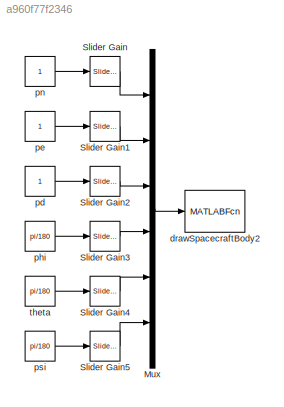
MODEL slx_a960f77f2346
KIND model
CONFIG AbsTol = auto
CONFIG EnableMultiTasking = off
CONFIG FixedStep = 0.1
CONFIG MaxStep = auto
CONFIG MinStep = auto
CONFIG RelTol = 1e-3
CONFIG SampleTimeConstraint = Unconstrained
CONFIG Solver = ode4
CONFIG SolverName = ode4
CONFIG StartTime = 0.0
CONFIG StopTime = 60000
BLOCK [Mux] Mux
  DisplayOption = bar
  Inputs = 6
  Ports = [6, 1]
BLOCK [Reference] Slider Gain  REF=simulink/Math
Operations/Slider
Gain
  Ports = [1, 1]
  SourceBlock = simulink/Math\nOperations/Slider\nGain
  SourceProductBaseCode = SL
  SourceProductName = Simulink
  SourceType = Slider Gain
BLOCK [Reference] Slider Gain1  REF=simulink/Math
Operations/Slider
Gain
  Ports = [1, 1]
  SourceBlock = simulink/Math\nOperations/Slider\nGain
  SourceProductBaseCode = SL
  SourceProductName = Simulink
  SourceType = Slider Gain
BLOCK [Reference] Slider Gain2  REF=simulink/Math
Operations/Slider
Gain
  Ports = [1, 1]
  SourceBlock = simulink/Math\nOperations/Slider\nGain
  SourceProductBaseCode = SL
  SourceProductName = Simulink
  SourceType = Slider Gain
BLOCK [Reference] Slider Gain3  REF=simulink/Math
Operations/Slider
Gain
  Ports = [1, 1]
  SourceBlock = simulink/Math\nOperations/Slider\nGain
  SourceProductBaseCode = SL
  SourceProductName = Simulink
  SourceType = Slider Gain
BLOCK [Reference] Slider Gain4  REF=simulink/Math
Operations/Slider
Gain
  Ports = [1, 1]
  SourceBlock = simulink/Math\nOperations/Slider\nGain
  SourceProductBaseCode = SL
  SourceProductName = Simulink
  SourceType = Slider Gain
BLOCK [Reference] Slider Gain5  REF=simulink/Math
Operations/Slider
Gain
  Ports = [1, 1]
  SourceBlock = simulink/Math\nOperations/Slider\nGain
  SourceProductBaseCode = SL
  SourceProductName = Simulink
  SourceType = Slider Gain
BLOCK [MATLABFcn] drawSpacecraftBody2
  MATLABFcn = drawSpacecraftBody2
  OutputDimensions = 0
  Ports = [1]
BLOCK [Constant] pd
BLOCK [Constant] pe
BLOCK [Constant] phi
  Value = pi/180
BLOCK [Constant] pn 
BLOCK [Constant] psi
  Value = pi/180
BLOCK [Constant] theta
  Value = pi/180
LINE Mux:1 -> drawSpacecraftBody2:1
LINE Slider Gain1:1 -> Mux:2
LINE Slider Gain2:1 -> Mux:3
LINE Slider Gain3:1 -> Mux:4
LINE Slider Gain4:1 -> Mux:5
LINE Slider Gain5:1 -> Mux:6
LINE Slider Gain:1 -> Mux:1
LINE pd:1 -> Slider Gain2:1
LINE pe:1 -> Slider Gain1:1
LINE phi:1 -> Slider Gain3:1
LINE pn :1 -> Slider Gain:1
LINE psi:1 -> Slider Gain5:1
LINE theta:1 -> Slider Gain4:1
